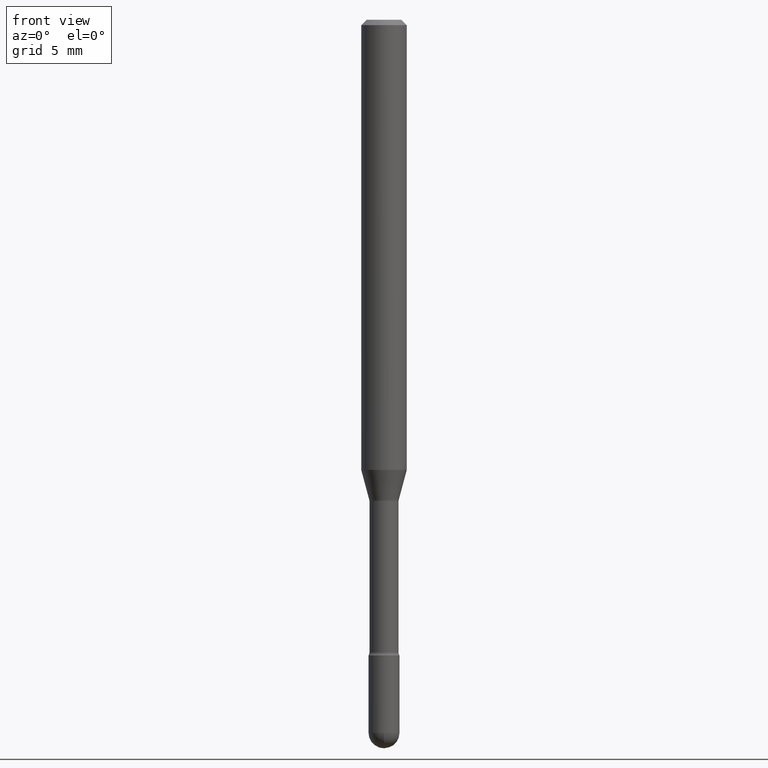
[diagram: clean part render]
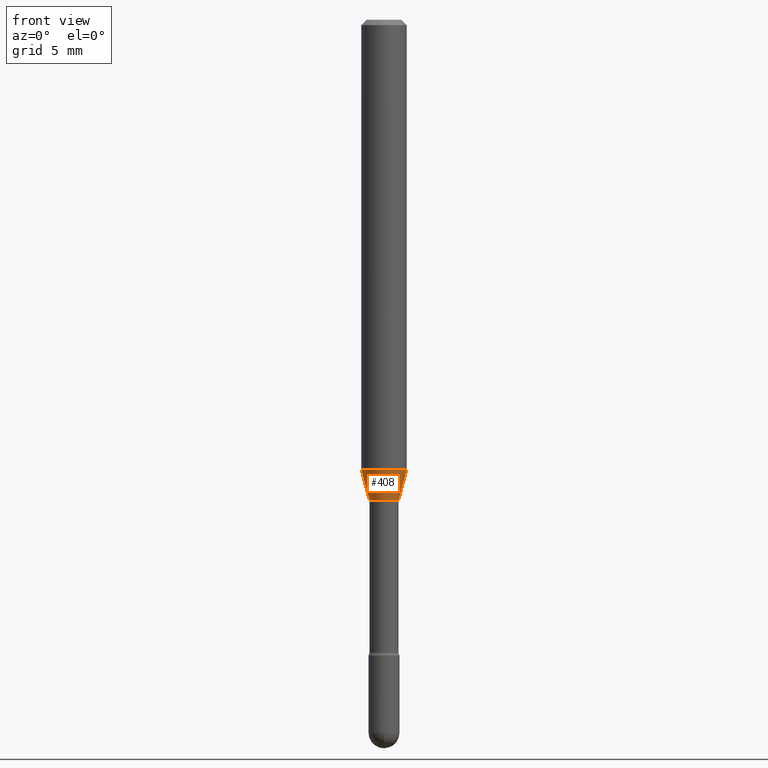
[diagram: same view with one face highlighted and labeled with its STEP entity id]
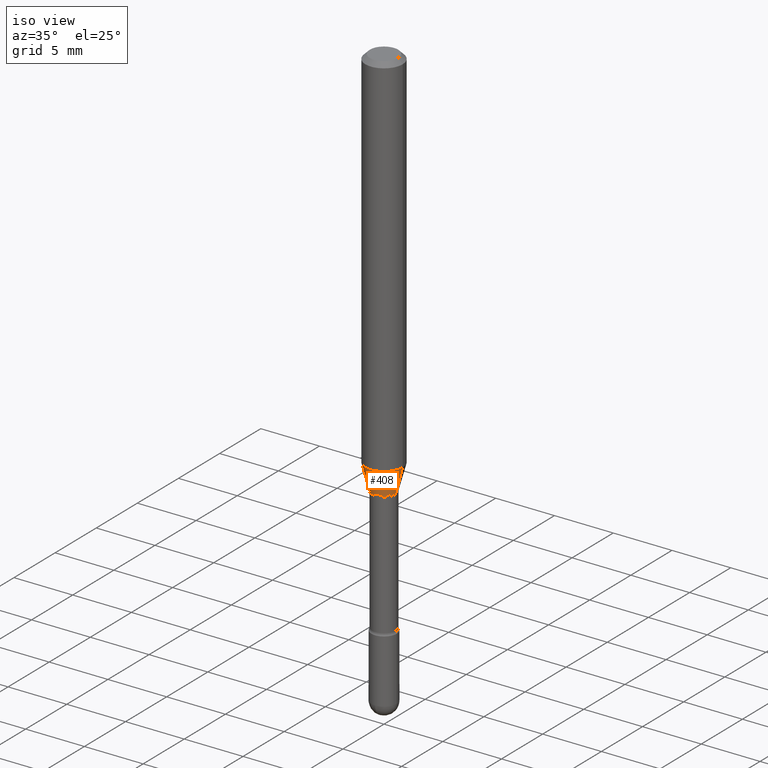
[diagram: same view with one face highlighted and labeled with its STEP entity id]
A machine part, front view. The second image highlights one B-rep face of the part: STEP entity #408.
A second angle (iso view) of the same face is appended — the face is thin or edge-on in the first view.
In plain terms, the highlighted conical surface has half-angle 15 deg.
Its self-contained STEP definition (entity closure, byte-faithful):
#11 = DIRECTION ( 'NONE',  ( -2.445468806185136597E-29, 3.491481338843145583E-15, 1.000000000000000000 ) ) ;
#14 = ORIENTED_EDGE ( 'NONE', *, *, #320, .F. ) ;
#28 = ORIENTED_EDGE ( 'NONE', *, *, #522, .T. ) ;
#41 = FACE_OUTER_BOUND ( 'NONE', #210, .T. ) ;
#69 = VERTEX_POINT ( 'NONE', #425 ) ;
#85 = CIRCLE ( 'NONE', #403, 0.04046111260566397777 ) ;
#118 = DIRECTION ( 'NONE',  ( -0.2588190451025214611, 5.211531920934551042E-15, 0.9659258262890682012 ) ) ;
#143 = VERTEX_POINT ( 'NONE', #306 ) ;
#144 = VECTOR ( 'NONE', #118, 39.37007874015747433 ) ;
#169 = LINE ( 'NONE', #341, #396 ) ;
#176 = CARTESIAN_POINT ( 'NONE',  ( -0.04046111260566397777, -4.092716417593515738E-15, -1.318092501787273330 ) ) ;
#187 = CARTESIAN_POINT ( 'NONE',  ( 3.223354096787303073E-29, -4.602095372859339575E-15, -1.318092501787273330 ) ) ;
#195 = DIRECTION ( 'NONE',  ( 0.2588190451025214611, 1.565188264969621573E-15, 0.9659258262890682012 ) ) ;
#203 = AXIS2_PLACEMENT_3D ( 'NONE', #546, #11, #541 ) ;
#210 = EDGE_LOOP ( 'NONE', ( #14, #271, #28, #449 ) ) ;
#212 = CARTESIAN_POINT ( 'NONE',  ( -0.04046111260566397777, -4.314601876432080730E-15, -1.318092501787273330 ) ) ;
#246 = LINE ( 'NONE', #212, #144 ) ;
#262 = CARTESIAN_POINT ( 'NONE',  ( 3.223354096787303073E-29, -4.602095372859339575E-15, -1.318092501787273330 ) ) ;
#271 = ORIENTED_EDGE ( 'NONE', *, *, #472, .T. ) ;
#285 = CONICAL_SURFACE ( 'NONE', #301, 0.04046111260566397777, 0.2617993877991501295 ) ;
#301 = AXIS2_PLACEMENT_3D ( 'NONE', #262, #434, #447 ) ;
#306 = CARTESIAN_POINT ( 'NONE',  ( 0.06250000000000000000, -4.751355335960405821E-15, -1.235842254289322151 ) ) ;
#320 = EDGE_CURVE ( 'NONE', #386, #464, #246, .T. ) ;
#341 = CARTESIAN_POINT ( 'NONE',  ( 0.04046111260566397777, -4.884633812082352936E-15, -1.318092501787273330 ) ) ;
#363 = DIRECTION ( 'NONE',  ( -2.445468806185136597E-29, 3.491481338843145583E-15, 1.000000000000000000 ) ) ;
#386 = VERTEX_POINT ( 'NONE', #176 ) ;
#395 = CARTESIAN_POINT ( 'NONE',  ( -0.06250000000000000000, -3.870830958754951536E-15, -1.235842254289322151 ) ) ;
#396 = VECTOR ( 'NONE', #195, 39.37007874015747433 ) ;
#399 = DIRECTION ( 'NONE',  ( 1.000000000000000000, -6.982962677686276966E-15, 0.000000000000000000 ) ) ;
#403 = AXIS2_PLACEMENT_3D ( 'NONE', #187, #363, #399 ) ;
#408 = ADVANCED_FACE ( 'NONE', ( #41 ), #285, .T. ) ;
#425 = CARTESIAN_POINT ( 'NONE',  ( 0.04046111260566397777, -4.884633812082352936E-15, -1.318092501787273330 ) ) ;
#434 = DIRECTION ( 'NONE',  ( -2.445468806185136597E-29, 3.491481338843145583E-15, 1.000000000000000000 ) ) ;
#447 = DIRECTION ( 'NONE',  ( 1.000000000000000000, -6.982962677686276966E-15, 0.000000000000000000 ) ) ;
#449 = ORIENTED_EDGE ( 'NONE', *, *, #485, .F. ) ;
#453 = CIRCLE ( 'NONE', #203, 0.06250000000000000000 ) ;
#464 = VERTEX_POINT ( 'NONE', #395 ) ;
#472 = EDGE_CURVE ( 'NONE', #386, #69, #85, .T. ) ;
#485 = EDGE_CURVE ( 'NONE', #464, #143, #453, .T. ) ;
#522 = EDGE_CURVE ( 'NONE', #69, #143, #169, .T. ) ;
#541 = DIRECTION ( 'NONE',  ( 1.000000000000000000, -6.982962677686270655E-15, 0.000000000000000000 ) ) ;
#546 = CARTESIAN_POINT ( 'NONE',  ( 3.022213682230056525E-29, -4.314920168605014152E-15, -1.235842254289322151 ) ) ;